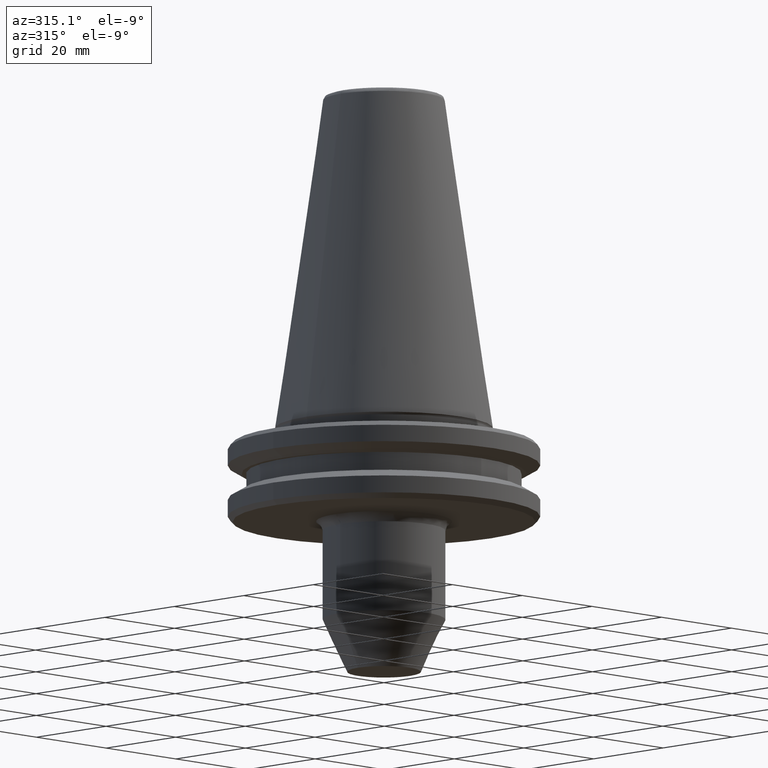
[diagram: clean part render]
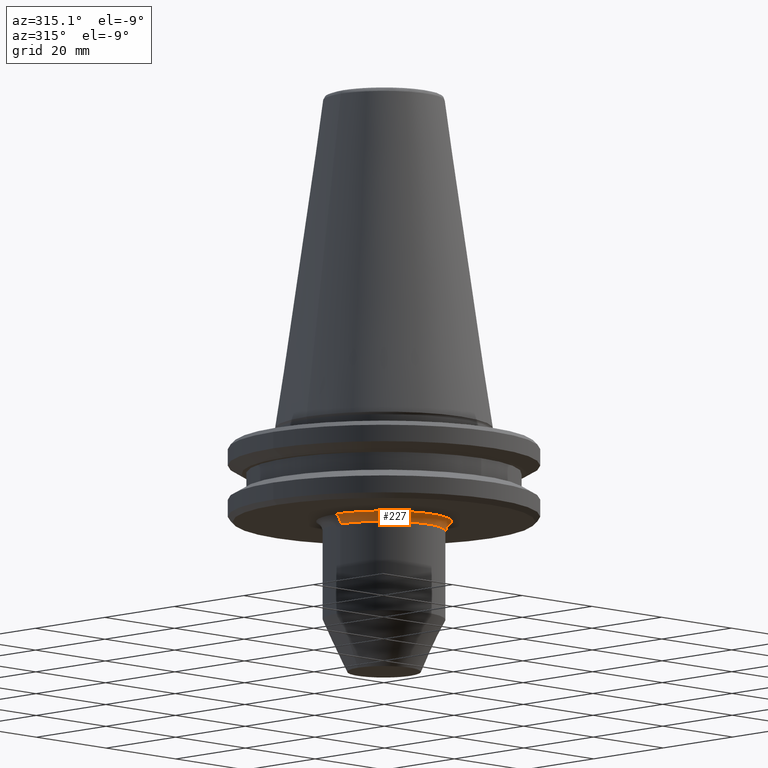
[diagram: same view with one face highlighted and labeled with its STEP entity id]
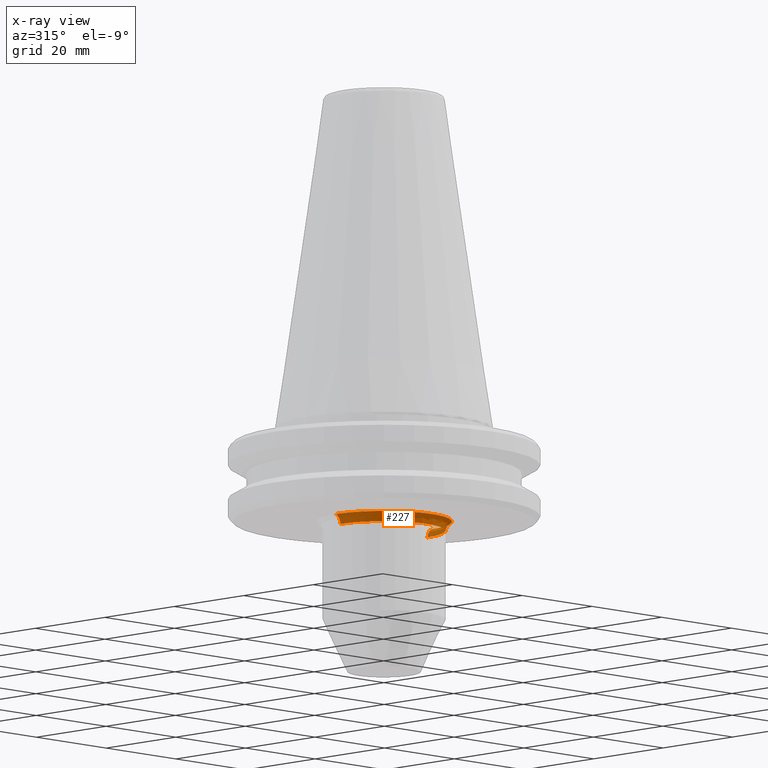
[diagram: x-ray of the same camera — body ghosted, the highlighted face saturated]
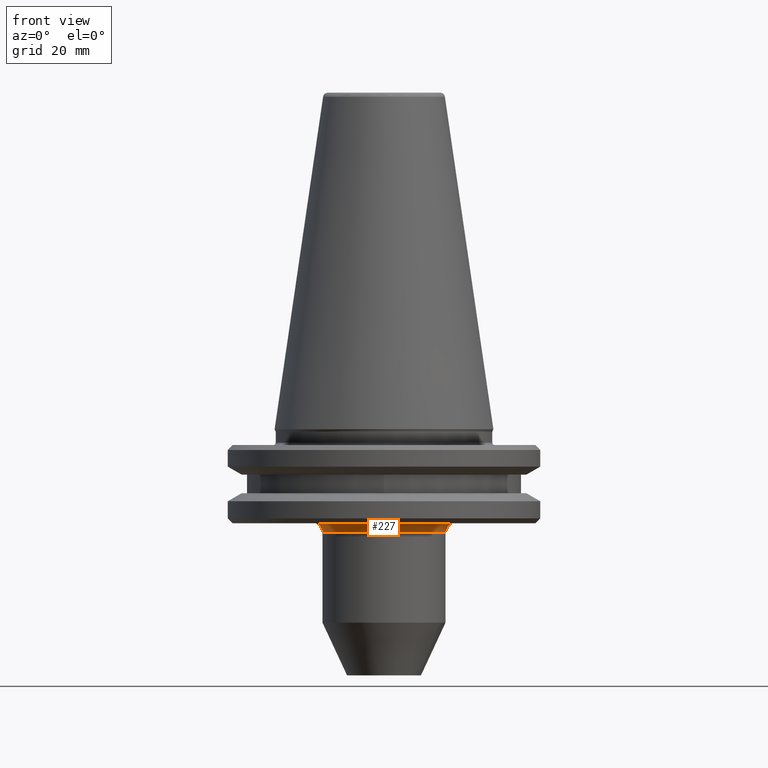
[diagram: same view with one face highlighted and labeled with its STEP entity id]
A machine part, auxiliary view. The second image highlights one B-rep face of the part: STEP entity #227.
The next image is the same camera in x-ray: the body ghosted, the highlighted face saturated — about 3% of this face is hidden behind the body in this view.
A second angle (front view) of the same face is appended — the face is thin or edge-on in the first view.
In plain terms, the highlighted face is a freeform B-spline surface patch.
Its self-contained STEP definition (entity closure, byte-faithful):
#31 =( BOUNDED_CURVE ( )  B_SPLINE_CURVE ( 3, ( #1119, #274, #1265, #533 ),
 .UNSPECIFIED., .F., .T. ) 
 B_SPLINE_CURVE_WITH_KNOTS ( ( 4, 4 ),
 ( 0.07506785600002399700, 0.9249321437999864500 ),
 .UNSPECIFIED. ) 
 CURVE ( )  GEOMETRIC_REPRESENTATION_ITEM ( )  RATIONAL_B_SPLINE_CURVE ( ( 0.9661355370144857300, 0.8487111741420410000, 0.8487111741144088800, 0.9661355369315890500 ) ) 
 REPRESENTATION_ITEM ( '' )  );
#68 =( BOUNDED_SURFACE ( )  B_SPLINE_SURFACE ( 3, 3, ( 
 ( #546, #553, #717, #305 ),
 ( #1058, #965, #764, #1288 ),
 ( #242, #94, #370, #233 ),
 ( #701, #1140, #624, #287 ) ),
 .UNSPECIFIED., .F., .F., .F. ) 
 B_SPLINE_SURFACE_WITH_KNOTS ( ( 4, 4 ),
 ( 4, 4 ),
 ( 0.0000000000000000000, 1.000000000000000000 ),
 ( 0.0000000000000000000, 1.000000000000000000 ),
 .UNSPECIFIED. ) 
 GEOMETRIC_REPRESENTATION_ITEM ( )  RATIONAL_B_SPLINE_SURFACE ( (
 ( 1.000000000000000000, 0.3333333333333330400, 0.3333333333333330400, 1.000000000000000000),
 ( 0.8374230199059669000, 0.2791410066353219300, 0.2791410066353219300, 0.8374230199059669000),
 ( 0.8374230199059669000, 0.2791410066353219300, 0.2791410066353219300, 0.8374230199059669000),
 ( 1.000000000000000000, 0.3333333333333330400, 0.3333333333333330400, 1.000000000000000000) ) ) 
 REPRESENTATION_ITEM ( '' )  SURFACE ( )  );
#71 = AXIS2_PLACEMENT_3D ( 'NONE', #1298, #1296, #1293 ) ;
#94 = CARTESIAN_POINT ( 'NONE',  ( -13.00577966200000000, -26.01155932400000000, -19.29376887399999800 ) ) ;
#142 = VERTEX_POINT ( 'NONE', #1317 ) ;
#221 = EDGE_CURVE ( 'NONE', #799, #641, #31, .T. ) ;
#227 = ADVANCED_FACE ( 'NONE', ( #610 ), #68, .F. ) ;
#233 = CARTESIAN_POINT ( 'NONE',  ( 13.00577966200000000, 0.0000000000000000000, -19.29376887399998700 ) ) ;
#242 = CARTESIAN_POINT ( 'NONE',  ( -13.00577966200000000, 0.0000000000000000000, -19.29376887399998700 ) ) ;
#274 = CARTESIAN_POINT ( 'NONE',  ( -12.49999999923072600, -1.281896428134998800E-009, -20.10910226075869300 ) ) ;
#287 = CARTESIAN_POINT ( 'NONE',  ( 14.01687492700000000, 0.0000000000000000000, -19.04207220499999700 ) ) ;
#305 = CARTESIAN_POINT ( 'NONE',  ( 12.50999166900000000, 0.0000000000000000000, -21.18250954599999500 ) ) ;
#370 = CARTESIAN_POINT ( 'NONE',  ( 13.00577966200000000, -26.01155932400000000, -19.29376887399999800 ) ) ;
#395 = EDGE_CURVE ( 'NONE', #1314, #799, #464, .T. ) ;
#434 = CARTESIAN_POINT ( 'NONE',  ( 12.49999999979916300, 0.0000000000000000000, -20.98284271362722800 ) ) ;
#464 = CIRCLE ( 'NONE', #71, 12.49999999959832700 ) ;
#521 = EDGE_LOOP ( 'NONE', ( #1267, #528, #1291, #1199 ) ) ;
#528 = ORIENTED_EDGE ( 'NONE', *, *, #595, .F. ) ;
#533 = CARTESIAN_POINT ( 'NONE',  ( -13.82553478998276800, -9.924826052885859400E-010, -19.10000000000000900 ) ) ;
#546 = CARTESIAN_POINT ( 'NONE',  ( -12.50999166900000000, 0.0000000000000000000, -21.18250954599999500 ) ) ;
#553 = CARTESIAN_POINT ( 'NONE',  ( -12.50999166899999800, -25.01998333900000700, -21.18250954599999100 ) ) ;
#594 = CARTESIAN_POINT ( 'NONE',  ( 13.82553478998277500, 0.0000000000000000000, -19.10000000000001200 ) ) ;
#595 = EDGE_CURVE ( 'NONE', #142, #1314, #729, .T. ) ;
#596 = CARTESIAN_POINT ( 'NONE',  ( 13.82553478998279300, -27.65106958078503400, -19.10000000000000500 ) ) ;
#610 = FACE_OUTER_BOUND ( 'NONE', #521, .T. ) ;
#615 = CARTESIAN_POINT ( 'NONE',  ( -13.82553478998279300, -27.65106958078503400, -19.10000000000000500 ) ) ;
#624 = CARTESIAN_POINT ( 'NONE',  ( 14.01687492700000000, -28.03374985499999600, -19.04207220499999700 ) ) ;
#631 = CARTESIAN_POINT ( 'NONE',  ( -13.82553478998276800, -9.924826052885859400E-010, -19.10000000000001200 ) ) ;
#641 = VERTEX_POINT ( 'NONE', #796 ) ;
#673 = CARTESIAN_POINT ( 'NONE',  ( -12.49999999969874600, -1.281896141186502100E-009, -20.98284271374346200 ) ) ;
#701 = CARTESIAN_POINT ( 'NONE',  ( -14.01687492700000000, 0.0000000000000000000, -19.04207220499999700 ) ) ;
#717 = CARTESIAN_POINT ( 'NONE',  ( 12.50999166899999800, -25.01998333900000700, -21.18250954599999100 ) ) ;
#729 =( BOUNDED_CURVE ( )  B_SPLINE_CURVE ( 3, ( #842, #838, #832, #830 ),
 .UNSPECIFIED., .F., .F. ) 
 B_SPLINE_CURVE_WITH_KNOTS ( ( 4, 4 ),
 ( 0.07506785620001174600, 0.9249321439141855400 ),
 .UNSPECIFIED. ) 
 CURVE ( )  GEOMETRIC_REPRESENTATION_ITEM ( )  RATIONAL_B_SPLINE_CURVE ( ( 0.9661355370306683500, 0.8487111742132990000, 0.8487111742290773800, 0.9661355370780039300 ) ) 
 REPRESENTATION_ITEM ( '' )  );
#764 = CARTESIAN_POINT ( 'NONE',  ( 12.40596999900000200, -24.81193999800000300, -20.14576254599999700 ) ) ;
#796 = CARTESIAN_POINT ( 'NONE',  ( -13.82553478998276800, -9.924826052885859400E-010, -19.10000000000000900 ) ) ;
#799 = VERTEX_POINT ( 'NONE', #673 ) ;
#815 =( BOUNDED_CURVE ( )  B_SPLINE_CURVE ( 3, ( #631, #615, #596, #594 ),
 .UNSPECIFIED., .F., .F. ) 
 B_SPLINE_CURVE_WITH_KNOTS ( ( 4, 4 ),
 ( 4.207812494062200400E-013, 0.04334353907654568700 ),
 .UNSPECIFIED. ) 
 CURVE ( )  GEOMETRIC_REPRESENTATION_ITEM ( )  RATIONAL_B_SPLINE_CURVE ( ( 0.9661355370306719000, 0.3220451790102236700, 0.3220451790102236700, 0.9661355370306719000 ) ) 
 REPRESENTATION_ITEM ( '' )  );
#830 = CARTESIAN_POINT ( 'NONE',  ( 12.49999999979916300, 0.0000000000000000000, -20.98284271362722800 ) ) ;
#832 = CARTESIAN_POINT ( 'NONE',  ( 12.49999999933227800, 0.0000000000000000000, -20.10910226061444900 ) ) ;
#838 = CARTESIAN_POINT ( 'NONE',  ( 13.00297686807047400, 0.0000000000000000000, -19.39465376830687400 ) ) ;
#842 = CARTESIAN_POINT ( 'NONE',  ( 13.82553478998277500, 0.0000000000000000000, -19.10000000000001200 ) ) ;
#886 = EDGE_CURVE ( 'NONE', #641, #142, #815, .T. ) ;
#965 = CARTESIAN_POINT ( 'NONE',  ( -12.40596999900000200, -24.81193999800000300, -20.14576254599999700 ) ) ;
#1058 = CARTESIAN_POINT ( 'NONE',  ( -12.40596999900000300, 0.0000000000000000000, -20.14576254600000400 ) ) ;
#1119 = CARTESIAN_POINT ( 'NONE',  ( -12.49999999969874600, -1.281896141186501900E-009, -20.98284271374346200 ) ) ;
#1140 = CARTESIAN_POINT ( 'NONE',  ( -14.01687492700000000, -28.03374985499999600, -19.04207220499999700 ) ) ;
#1199 = ORIENTED_EDGE ( 'NONE', *, *, #221, .F. ) ;
#1265 = CARTESIAN_POINT ( 'NONE',  ( -13.00297686797594600, -1.333477568256326800E-009, -19.39465376834073500 ) ) ;
#1267 = ORIENTED_EDGE ( 'NONE', *, *, #395, .F. ) ;
#1288 = CARTESIAN_POINT ( 'NONE',  ( 12.40596999900000300, 0.0000000000000000000, -20.14576254600000400 ) ) ;
#1291 = ORIENTED_EDGE ( 'NONE', *, *, #886, .F. ) ;
#1293 = DIRECTION ( 'NONE',  ( 0.0000000000000000000, 1.000000000000000000, 0.0000000000000000000 ) ) ;
#1296 = DIRECTION ( 'NONE',  ( 0.0000000000000000000, -1.387778780780551300E-016, -1.000000000000000000 ) ) ;
#1298 = CARTESIAN_POINT ( 'NONE',  ( 0.0000000000000000000, 0.0000000000000000000, -20.98284271385966100 ) ) ;
#1314 = VERTEX_POINT ( 'NONE', #434 ) ;
#1317 = CARTESIAN_POINT ( 'NONE',  ( 13.82553478998277500, 0.0000000000000000000, -19.10000000000001200 ) ) ;